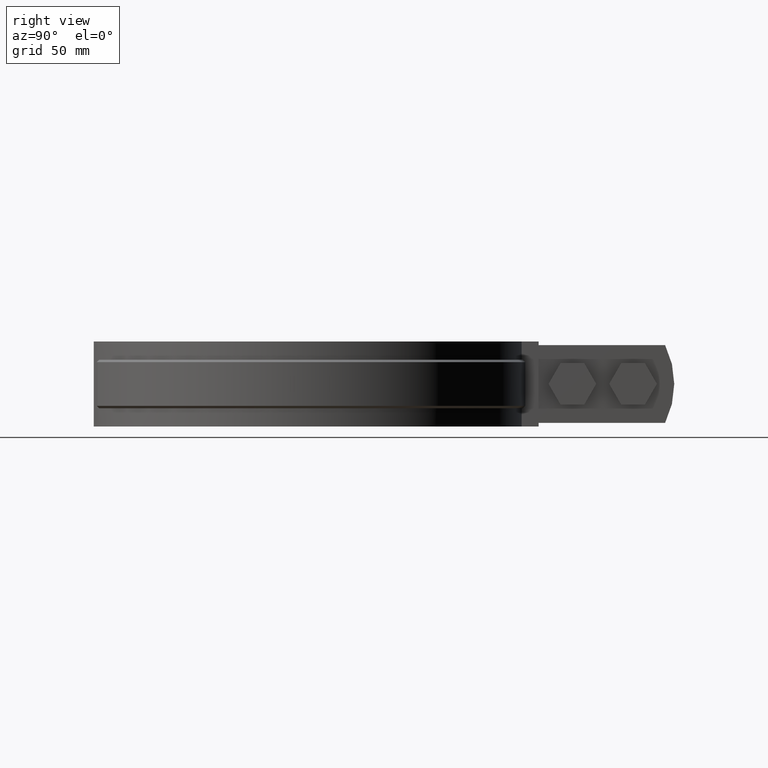
[diagram: clean part render]
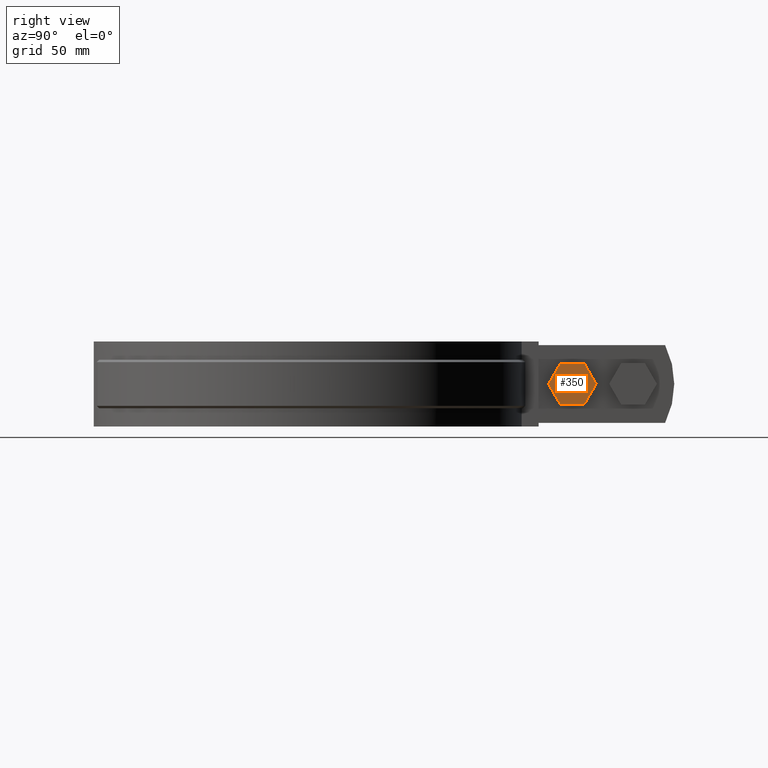
[diagram: same view with one face highlighted and labeled with its STEP entity id]
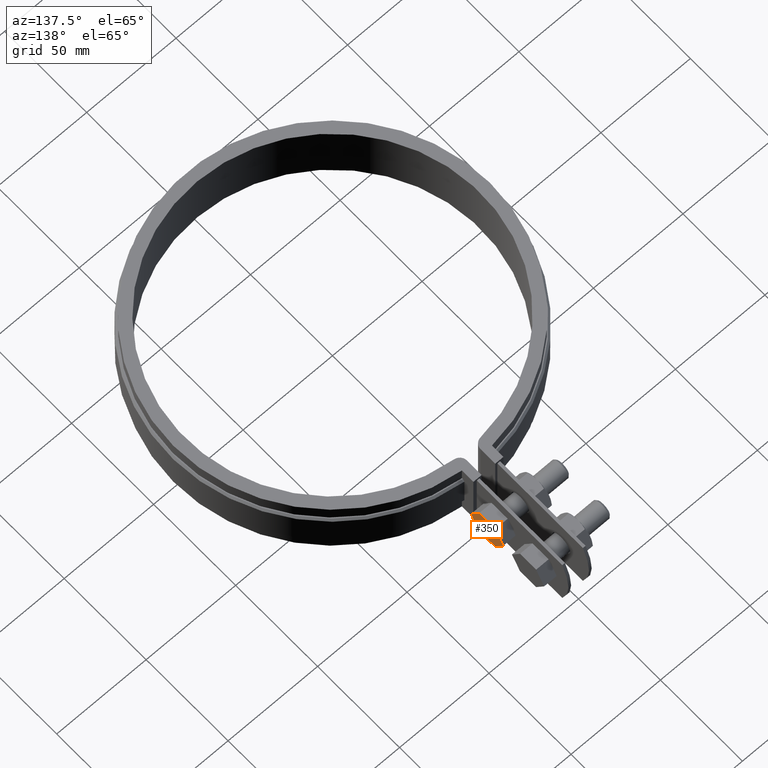
[diagram: same view with one face highlighted and labeled with its STEP entity id]
A machine part, right view. The second image highlights one B-rep face of the part: STEP entity #350.
A second angle (auxiliary view) of the same face is appended — the face is thin or edge-on in the first view.
In plain terms, the highlighted planar face has unit normal (-1, -0, -0).
Its self-contained STEP definition (entity closure, byte-faithful):
#350 = ADVANCED_FACE( '', ( #556 ), #557, .F. );
#556 = FACE_OUTER_BOUND( '', #1269, .T. );
#557 = PLANE( '', #1270 );
#1269 = EDGE_LOOP( '', ( #2920, #2921, #2922, #2923, #2924, #2925 ) );
#1270 = AXIS2_PLACEMENT_3D( '', #2926, #2927, #2928 );
#2920 = ORIENTED_EDGE( '', *, *, #4696, .T. );
#2921 = ORIENTED_EDGE( '', *, *, #4699, .T. );
#2922 = ORIENTED_EDGE( '', *, *, #4702, .T. );
#2923 = ORIENTED_EDGE( '', *, *, #4703, .T. );
#2924 = ORIENTED_EDGE( '', *, *, #4704, .T. );
#2925 = ORIENTED_EDGE( '', *, *, #4705, .T. );
#2926 = CARTESIAN_POINT( '', ( 13.5000000000000, 94.2803818780543, -7.50000000000252 ) );
#2927 = DIRECTION( '', ( -1.00000000000000, -6.26427921880513E-017, -3.08148791102233E-033 ) );
#2928 = DIRECTION( '', ( -1.35136084431209E-032, 1.66533453693790E-016, 1.00000000000000 ) );
#4696 = EDGE_CURVE( '', #5146, #5144, #5147, .T. );
#4699 = EDGE_CURVE( '', #5144, #5149, #5151, .T. );
#4702 = EDGE_CURVE( '', #5149, #5156, #5157, .T. );
#4703 = EDGE_CURVE( '', #5156, #5158, #5159, .T. );
#4704 = EDGE_CURVE( '', #5158, #5160, #5161, .T. );
#4705 = EDGE_CURVE( '', #5160, #5146, #5162, .T. );
#5144 = VERTEX_POINT( '', #6822 );
#5146 = VERTEX_POINT( '', #6825 );
#5147 = LINE( '', #6826, #6827 );
#5149 = VERTEX_POINT( '', #6830 );
#5151 = LINE( '', #6833, #6834 );
#5156 = VERTEX_POINT( '', #6839 );
#5157 = LINE( '', #6840, #6841 );
#5158 = VERTEX_POINT( '', #6842 );
#5159 = LINE( '', #6843, #6844 );
#5160 = VERTEX_POINT( '', #6845 );
#5161 = LINE( '', #6846, #6847 );
#5162 = LINE( '', #6848, #6849 );
#6822 = CARTESIAN_POINT( '', ( 13.5000000000000, 104.095336454275, -24.4999999999975 ) );
#6825 = CARTESIAN_POINT( '', ( 13.5000000000000, 99.1878591661647, -16.0000000000000 ) );
#6826 = CARTESIAN_POINT( '', ( 13.5000000000000, 99.1878591661647, -16.0000000000000 ) );
#6827 = VECTOR( '', #8732, 999.999999999901 );
#6830 = CARTESIAN_POINT( '', ( 13.5000000000000, 113.910291030496, -24.4999999999975 ) );
#6833 = CARTESIAN_POINT( '', ( 13.5000000000000, 104.095336454275, -24.4999999999975 ) );
#6834 = VECTOR( '', #8735, 999.999999999901 );
#6839 = CARTESIAN_POINT( '', ( 13.5000000000000, 118.817768318606, -16.0000000000000 ) );
#6840 = CARTESIAN_POINT( '', ( 13.5000000000000, 113.910291030496, -24.4999999999975 ) );
#6841 = VECTOR( '', #8742, 999.999999999901 );
#6842 = CARTESIAN_POINT( '', ( 13.5000000000000, 113.910291030496, -7.50000000000252 ) );
#6843 = CARTESIAN_POINT( '', ( 13.5000000000000, 118.817768318606, -16.0000000000000 ) );
#6844 = VECTOR( '', #8743, 999.999999999901 );
#6845 = CARTESIAN_POINT( '', ( 13.5000000000000, 104.095336454275, -7.50000000000252 ) );
#6846 = CARTESIAN_POINT( '', ( 13.5000000000000, 113.910291030496, -7.50000000000252 ) );
#6847 = VECTOR( '', #8744, 999.999999999901 );
#6848 = CARTESIAN_POINT( '', ( 13.5000000000000, 104.095336454275, -7.50000000000252 ) );
#6849 = VECTOR( '', #8745, 999.999999999901 );
#8732 = DIRECTION( '', ( -3.13213960940257E-017, 0.500000000000000, -0.866025403784439 ) );
#8735 = DIRECTION( '', ( -6.26427921880514E-017, 1.00000000000000, -1.66533453693790E-016 ) );
#8742 = DIRECTION( '', ( -3.13213960940257E-017, 0.500000000000000, 0.866025403784439 ) );
#8743 = DIRECTION( '', ( 3.13213960940257E-017, -0.500000000000000, 0.866025403784439 ) );
#8744 = DIRECTION( '', ( 6.26427921880513E-017, -1.00000000000000, 5.55111512312633E-017 ) );
#8745 = DIRECTION( '', ( 3.13213960940257E-017, -0.500000000000000, -0.866025403784438 ) );